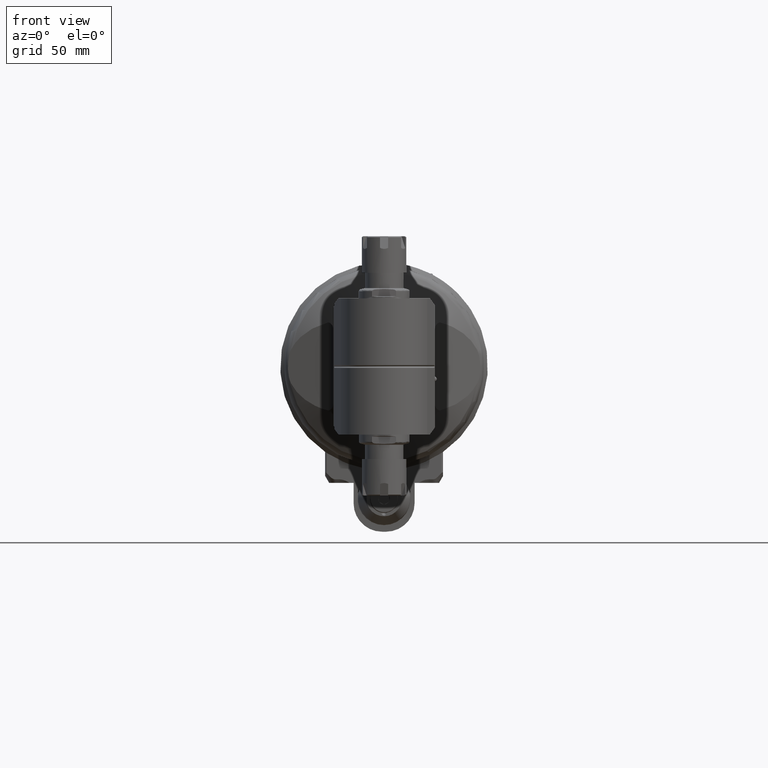
[diagram: clean part render]
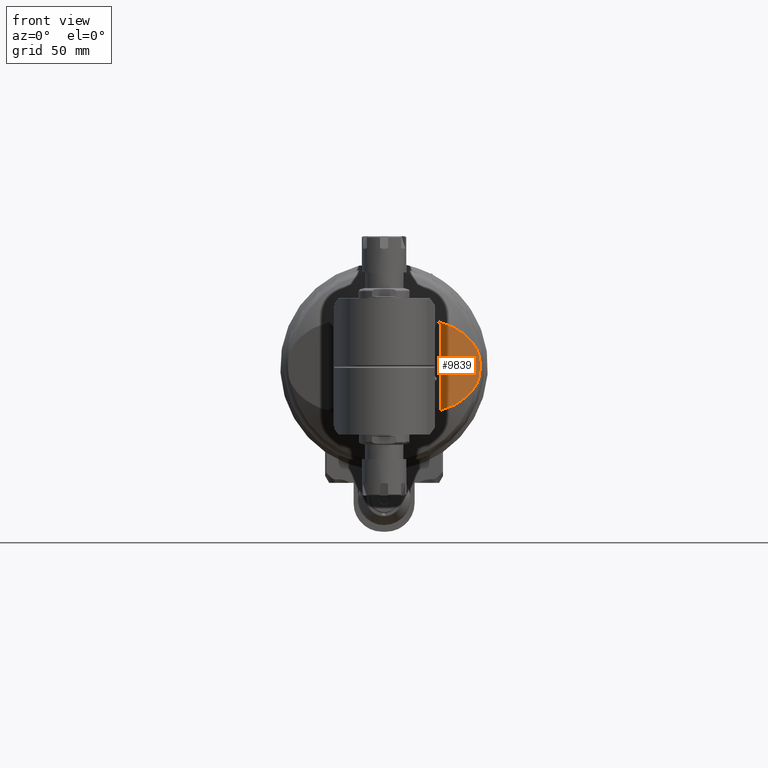
[diagram: same view with one face highlighted and labeled with its STEP entity id]
A machine part, front view. The second image highlights one B-rep face of the part: STEP entity #9839.
In plain terms, the highlighted planar face has unit normal (-0.342, 0.9397, 0).
Its self-contained STEP definition (entity closure, byte-faithful):
#221=B_SPLINE_CURVE_WITH_KNOTS('',3,(#15085,#15086,#15087,#15088,#15089,
#15090,#15091,#15092,#15093,#15094),.UNSPECIFIED.,.F.,.F.,(4,2,2,2,4),(1.06393658631461,
1.16949700403954,1.86220819496479,2.55491938589005,2.66047980361498),
 .UNSPECIFIED.);
#609=PLANE('',#10550);
#935=FACE_OUTER_BOUND('',#1538,.T.);
#1538=EDGE_LOOP('',(#6844,#6845,#6846,#6847));
#2164=ELLIPSE('',#10481,31.1727494163443,22.7387822282698);
#2169=ELLIPSE('',#10551,31.1727494163443,22.7387822282698);
#2240=LINE('',#15063,#2927);
#2927=VECTOR('',#11809,43.19417170586);
#4109=VERTEX_POINT('',#14738);
#4110=VERTEX_POINT('',#14740);
#4170=VERTEX_POINT('',#15062);
#4172=VERTEX_POINT('',#15084);
#5120=EDGE_CURVE('',#4110,#4109,#2164,.T.);
#5213=EDGE_CURVE('',#4110,#4170,#2240,.T.);
#5216=EDGE_CURVE('',#4172,#4109,#221,.T.);
#5217=EDGE_CURVE('',#4172,#4170,#2169,.T.);
#6844=ORIENTED_EDGE('',*,*,#5213,.F.);
#6845=ORIENTED_EDGE('',*,*,#5120,.T.);
#6846=ORIENTED_EDGE('',*,*,#5216,.F.);
#6847=ORIENTED_EDGE('',*,*,#5217,.T.);
#9839=ADVANCED_FACE('',(#935),#609,.F.);
#10481=AXIS2_PLACEMENT_3D('',#14741,#11644,#11645);
#10550=AXIS2_PLACEMENT_3D('',#15083,#11810,#11811);
#10551=AXIS2_PLACEMENT_3D('',#15095,#11812,#11813);
#11644=DIRECTION('center_axis',(0.939692620785897,0.,-0.342020143325699));
#11645=DIRECTION('ref_axis',(-0.342020143325699,7.39186362644738E-16,-0.939692620785897));
#11809=DIRECTION('',(0.,1.,0.));
#11810=DIRECTION('center_axis',(-0.939692620785897,0.,0.342020143325699));
#11811=DIRECTION('ref_axis',(0.,1.,0.));
#11812=DIRECTION('center_axis',(0.939692620785897,0.,-0.342020143325699));
#11813=DIRECTION('ref_axis',(-0.342020143325699,7.39186362644738E-16,-0.939692620785897));
#14738=CARTESIAN_POINT('',(20.44337571763,-8.253542184217,-45.76165470581));
#14740=CARTESIAN_POINT('',(27.04205971436,-21.59708585293,-27.6319194267));
#14741=CARTESIAN_POINT('Origin',(30.377955770746,0.,-18.4666203381165));
#15062=CARTESIAN_POINT('',(27.04205971436,21.59708585293,-27.6319194267));
#15063=CARTESIAN_POINT('',(27.04205971436,-21.59708585293,-27.6319194267));
#15083=CARTESIAN_POINT('Origin',(28.00000004466,0.,-25.));
#15084=CARTESIAN_POINT('',(20.44337571763,8.253542184217,-45.76165470581));
#15085=CARTESIAN_POINT('Ctrl Pts',(20.4433757176344,8.25354218421232,-45.7616547058023));
#15086=CARTESIAN_POINT('Ctrl Pts',(20.3820203374295,7.9176169654795,-45.9302272274772));
#15087=CARTESIAN_POINT('Ctrl Pts',(20.3286442922211,7.54983534377957,-46.0768767064272));
#15088=CARTESIAN_POINT('Ctrl Pts',(20.00800054598,5.05955185517031,-46.9578381589137));
#15089=CARTESIAN_POINT('Ctrl Pts',(19.8934108308826,2.30903730308418,-47.2726708136457));
#15090=CARTESIAN_POINT('Ctrl Pts',(19.8934108308826,-2.30903730308418,-47.2726708136457));
#15091=CARTESIAN_POINT('Ctrl Pts',(20.00800054598,-5.05955185517031,-46.9578381589137));
#15092=CARTESIAN_POINT('Ctrl Pts',(20.3286442922211,-7.54983534377957,-46.0768767064272));
#15093=CARTESIAN_POINT('Ctrl Pts',(20.3820203374295,-7.91761696547951,-45.9302272274773));
#15094=CARTESIAN_POINT('Ctrl Pts',(20.4433757176344,-8.25354218421233,-45.7616547058023));
#15095=CARTESIAN_POINT('Origin',(30.377955770746,0.,-18.4666203381165));